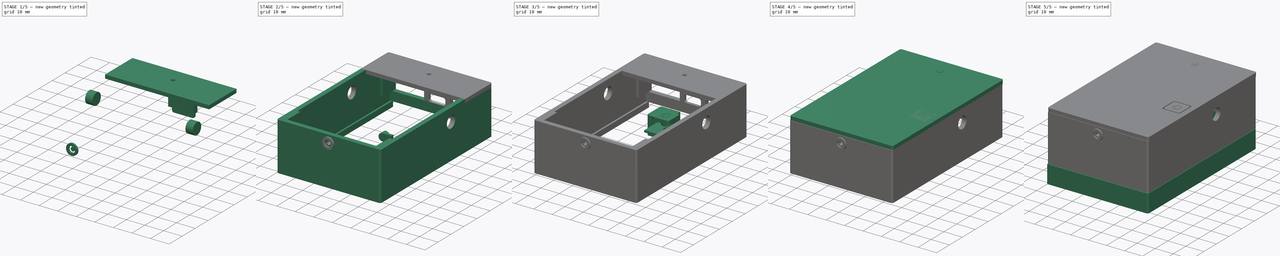
[diagram: build sequence overview — one tinted view per stage of 5, left to right]
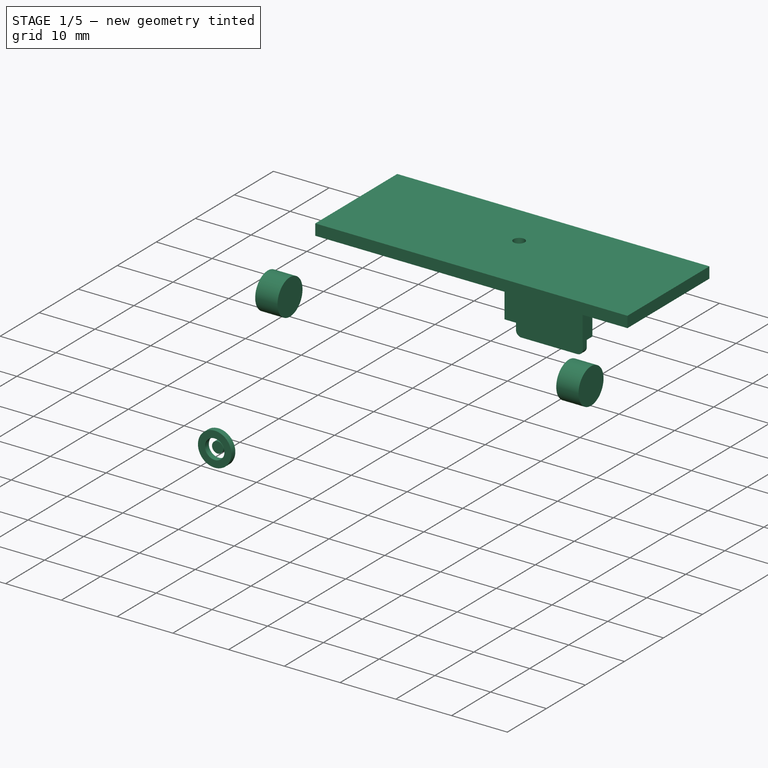
[diagram: stage 1 of 5 — iso view after this stage's code; geometry added in this stage tinted green]
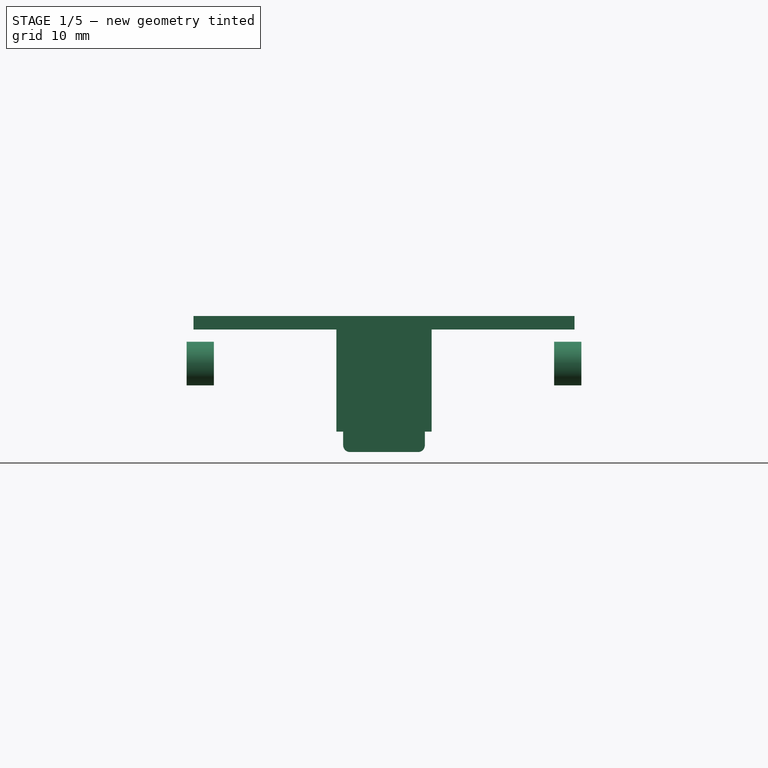
[diagram: stage 1 of 5 — front view after this stage's code; geometry added in this stage tinted green]
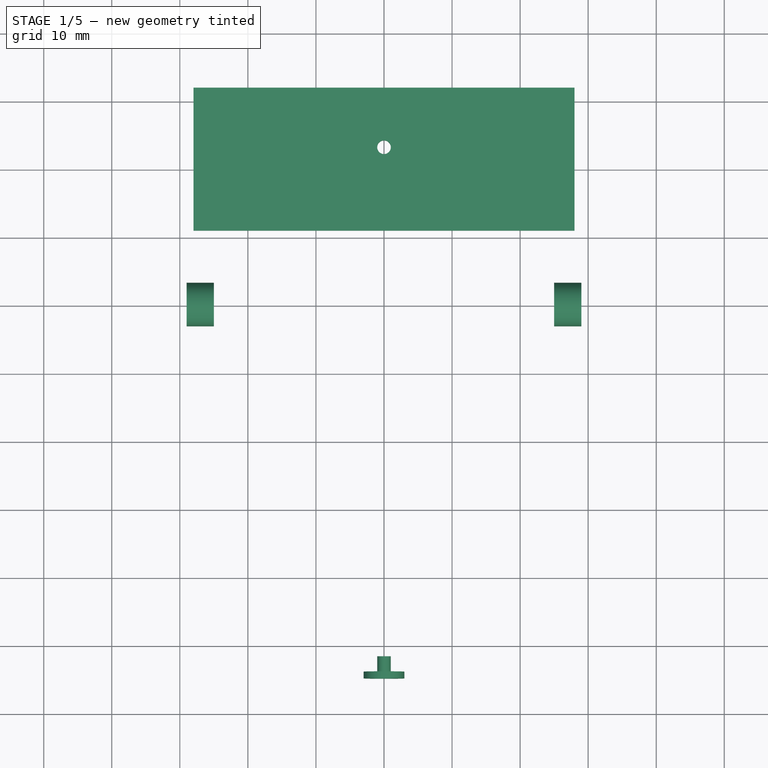
[diagram: stage 1 of 5 — top view after this stage's code; geometry added in this stage tinted green]
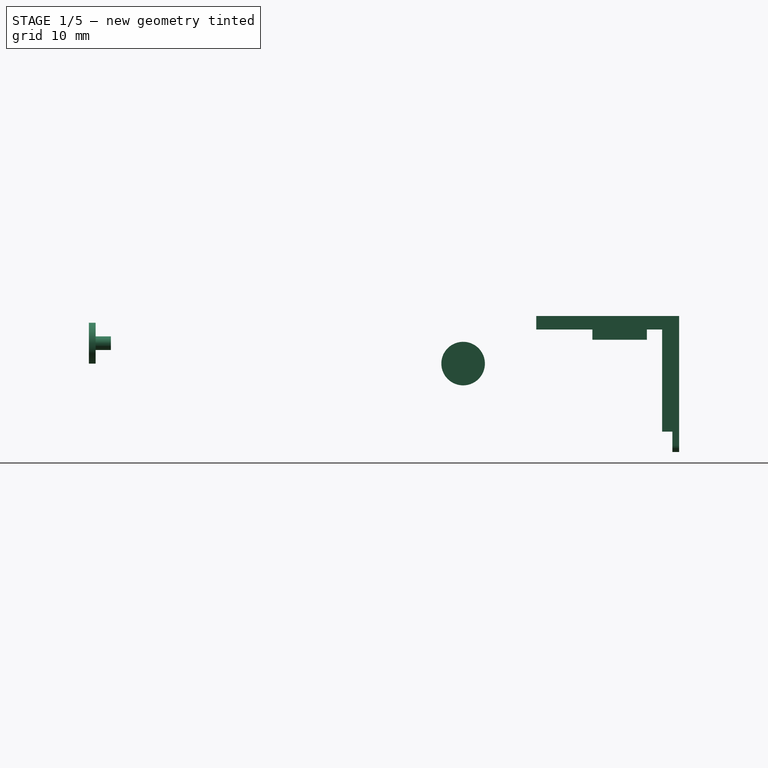
[diagram: stage 1 of 5 — right view after this stage's code; geometry added in this stage tinted green]
FCSTD DOCUMENT  (FreeCAD 0.19R)
Label: lte-router-table-outdoor-ant
License: All rights reserved
LicenseURL: http://en.wikipedia.org/wiki/All_rights_reserved
objects: Part::Box×27, Part::Cylinder×17, Part::MultiFuse×16, Part::Cut×16, Part::Fillet×9, Part::Extrusion×3, Part::RegularPolygon×2, Sketcher::SketchObject×1, PartDesign::Pad×1, PartDesign::Body×1, Part::Chamfer×1, Part::Cone×1, Part::Part2DObjectPython×1
note: 97 computed .brp shape members not serialized (recipe doc carries the construction recipe); baked Part::Feature solids carry a one-line shape summary decoded from their .brp

FEATURE [Part::Box] Box006  label="Куб006"
  AttacherType = Attacher::AttachEngine3D
  Height = 2
  Length = 56
  Placement = pos=(-28,20.75,15) rot=(0,0,1;0rad)
  Width = 21
FEATURE [Part::Cylinder] Cylinder  label="Цилиндр"
  Angle = 360
  AttacherType = Attacher::AttachEngine3D
  Height = 2
  Placement = pos=(0,33,15) rot=(0,0,1;0rad)
  Radius = 1
FEATURE [Part::Cut] Cut001
  Base = -> Box006
  Tool = -> Cylinder
FEATURE [Part::Box] Box007  label="Куб007"
  AttacherType = Attacher::AttachEngine3D
  Height = 17
  Length = 14
  Placement = pos=(-7,39.25,0) rot=(0,0,1;0rad)
  Width = 2.5
FEATURE [Part::Box] Box008  label="Куб008"
  AttacherType = Attacher::AttachEngine3D
  Height = 10
  Length = 12
  Placement = pos=(-6,40.75,-3) rot=(0,0,1;0rad)
  Width = 1
FEATURE [Part::Fillet] Fillet001
  Base = -> Box008
  Edges = 4 edges r=1: [Edge2,Edge4,Edge6,Edge8]
FEATURE [Part::Box] Box009  label="Куб009"
  AttacherType = Attacher::AttachEngine3D
  Height = 4
  Length = 9
  Placement = pos=(-4.5,39.25,0) rot=(0,0,1;0rad)
  Width = 2.5
FEATURE [Part::Fillet] Fillet002
  Base = -> Box009
  Edges = 4 edges r=1.2: [Edge2,Edge4,Edge6,Edge8]
FEATURE [Part::Cylinder] Cylinder004  label="Цилиндр004"
  Angle = 360
  AttacherType = Attacher::AttachEngine3D
  Height = 2.5
  Placement = pos=(0,-41.75,13) rot=(1,0,0;1.5708rad)
  Radius = 1
FEATURE [Part::Cylinder] Cylinder005  label="Цилиндр005"
  Angle = 360
  AttacherType = Attacher::AttachEngine3D
  Height = 1
  Placement = pos=(0,-44,13) rot=(1,0,0;1.5708rad)
  Radius = 1.75
  expr: Radius = 3.5 / 2
FEATURE [Part::Cylinder] Cylinder006  label="Цилиндр006"
  Angle = 360
  AttacherType = Attacher::AttachEngine3D
  Height = 1
  Placement = pos=(0,-44,13) rot=(1,0,0;1.5708rad)
  Radius = 3
FEATURE [Part::Cut] Cut005
  Base = -> Cylinder006
  Tool = -> Cylinder005
FEATURE [Part::RegularPolygon] RegularPolygon  label="Правильный многоугольник"
  AttacherType = Attacher::AttachEngine3D
  Circumradius = 2.3
  Polygon = 6
FEATURE [Part::Extrusion] Extrude
  Base = -> RegularPolygon
  Dir = (0,0,1)
  DirMode = 2
  FaceMakerClass = Part::FaceMakerBullseye
  LengthFwd = 1.5
  LengthRev = 0
  Solid = true
  Symmetric = false
FEATURE [Part::Box] Box016  label="Куб016"
  AttacherType = Attacher::AttachEngine3D
  Height = 1.5
  Length = 8
  Placement = pos=(-4,-4,0) rot=(0,0,1;0rad)
  Width = 8
FEATURE [Part::Cut] Cut006
  Base = -> Box016
  Placement = pos=(0,33,13.5) rot=(0,0,1;0rad)
  Tool = -> Extrude
FEATURE [Part::Cylinder] Cylinder015  label="Цилиндр015"
  Angle = 360
  AttacherType = Attacher::AttachEngine3D
  Height = 4
  Placement = pos=(25,10,10) rot=(0,1,0;1.5708rad)
  Radius = 3.2
FEATURE [Part::Cylinder] Cylinder016  label="Цилиндр016"
  Angle = 360
  AttacherType = Attacher::AttachEngine3D
  Height = 4
  Placement = pos=(-29,10,10) rot=(0,1,0;1.5708rad)
  Radius = 3.2
FEATURE [Part::MultiFuse] Fusion003
  Shapes = -> [Fillet001,Fillet002,Cylinder004,Cylinder015,Cylinder016]
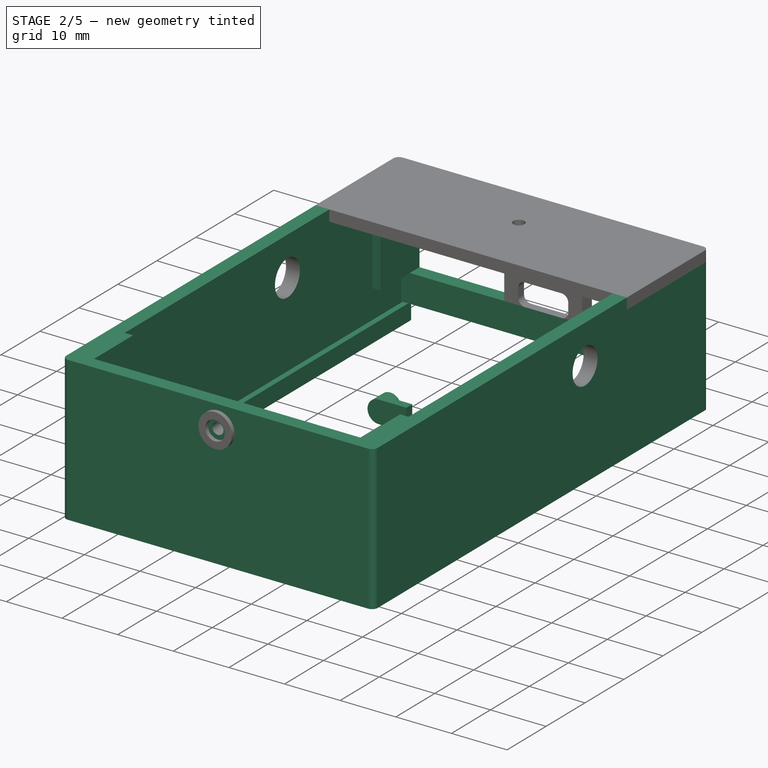
[diagram: stage 2 of 5 — iso view after this stage's code; geometry added in this stage tinted green]
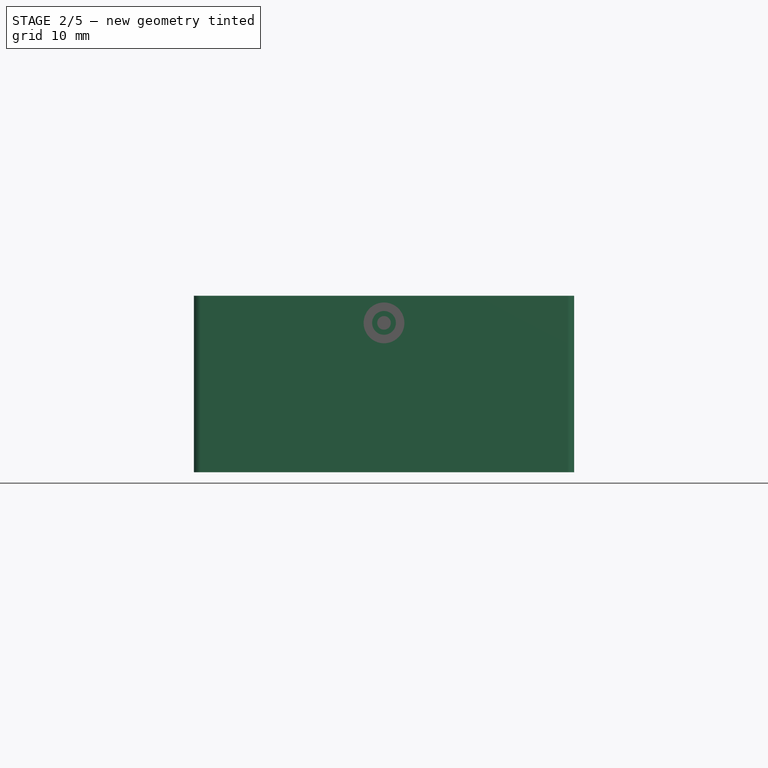
[diagram: stage 2 of 5 — front view after this stage's code; geometry added in this stage tinted green]
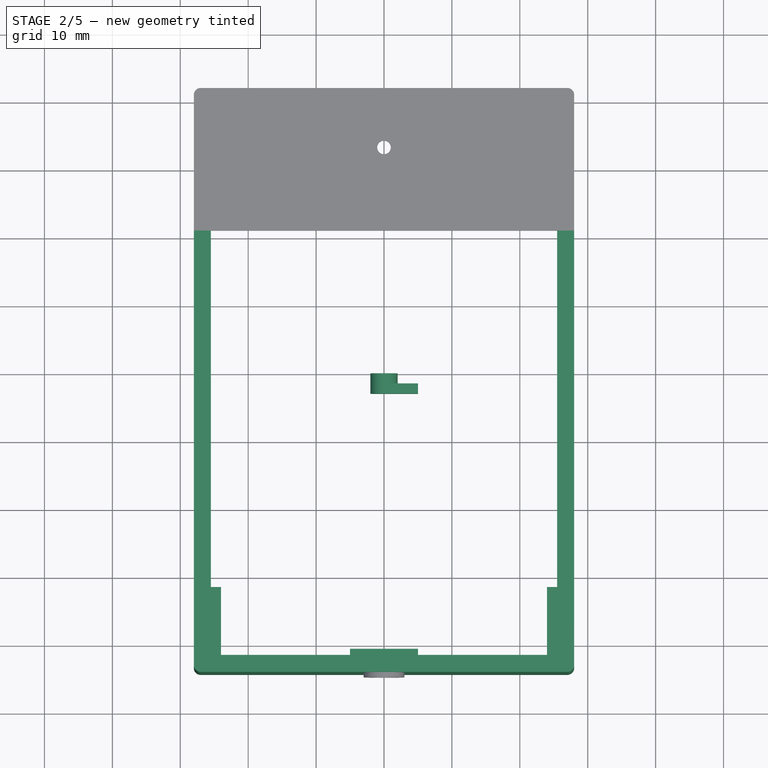
[diagram: stage 2 of 5 — top view after this stage's code; geometry added in this stage tinted green]
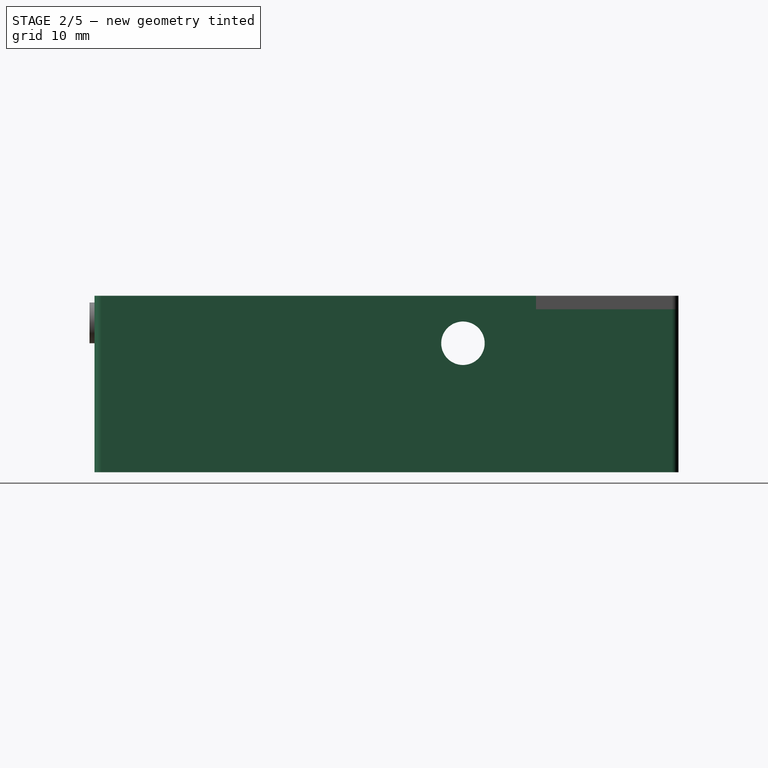
[diagram: stage 2 of 5 — right view after this stage's code; geometry added in this stage tinted green]
FEATURE [Sketcher::SketchObject] Sketch002
  FullyConstrained = true
  MapMode = 5
  Support = -> [XY_Plane002]
  expr: Constraints[60] = Constraints[38]
  expr: Constraints[38] = Constraints[37]
  expr: Constraints[36] = Constraints[29]
  expr: Constraints[25] = Constraints[24]
  expr: Constraints[7] = Constraints[49] / 2
  expr: Constraints[6] = Constraints[5] / 2
  sketch-geometry (28):
    g0: LineSegment StartX=25.5 StartY=41.75 StartZ=0 EndX=25.5 EndY=-41.75 EndZ=0
    g1: LineSegment StartX=25.5 StartY=-41.75 StartZ=0 EndX=-25.5 EndY=-41.75 EndZ=0
    g2: LineSegment StartX=-25.5 StartY=-41.75 StartZ=0 EndX=-25.5 EndY=41.75 EndZ=0
    g3: LineSegment StartX=-25.5 StartY=41.75 StartZ=0 EndX=-24 EndY=41.75 EndZ=0
    g4: LineSegment StartX=-24 StartY=41.75 StartZ=0 EndX=-24 EndY=31.75 EndZ=0
    g5: LineSegment StartX=-24 StartY=31.75 StartZ=0 EndX=-7.7 EndY=31.75 EndZ=0
    g6: LineSegment StartX=-7.7 StartY=31.75 StartZ=0 EndX=-7.7 EndY=41.75 EndZ=0
    g7: LineSegment StartX=-7.7 StartY=41.75 StartZ=0 EndX=7.7 EndY=41.75 EndZ=0
    g8: LineSegment StartX=7.7 StartY=41.75 StartZ=0 EndX=7.7 EndY=31.75 EndZ=0
    g9: LineSegment StartX=7.7 StartY=31.75 StartZ=0 EndX=24 EndY=31.75 EndZ=0
    g10: LineSegment StartX=24 StartY=31.75 StartZ=0 EndX=24 EndY=41.75 EndZ=0
    g11: LineSegment StartX=24 StartY=41.75 StartZ=0 EndX=25.5 EndY=41.75 EndZ=0
    g12: LineSegment StartX=-24 StartY=41.75 StartZ=0 EndX=-7.7 EndY=41.75 EndZ=0
    g13: LineSegment StartX=7.7 StartY=41.75 StartZ=0 EndX=24 EndY=41.75 EndZ=0
    g14: LineSegment StartX=-7.7 StartY=31.75 StartZ=0 EndX=7.7 EndY=31.75 EndZ=0
    g15: LineSegment StartX=-24 StartY=31.75 StartZ=0 EndX=-25.5 EndY=31.75 EndZ=0
    g16: LineSegment StartX=24 StartY=31.75 StartZ=0 EndX=25.5 EndY=31.75 EndZ=0
    g17: LineSegment StartX=25.5 StartY=31.75 StartZ=0 EndX=25.5 EndY=-41.75 EndZ=0
    g18: LineSegment StartX=-25.5 StartY=31.75 StartZ=0 EndX=-25.5 EndY=-31.75 EndZ=0
    g19: LineSegment StartX=-25.5 StartY=-31.75 StartZ=0 EndX=-24 EndY=-31.75 EndZ=0
    g20: LineSegment StartX=-24 StartY=-31.75 StartZ=0 EndX=-24 EndY=-41.75 EndZ=0
    g21: LineSegment StartX=-24 StartY=-31.75 StartZ=0 EndX=-24 EndY=31.75 EndZ=0
    g22: LineSegment StartX=-24 StartY=-31.75 StartZ=0 EndX=25.5 EndY=-31.75 EndZ=0
    g23: LineSegment StartX=25.5 StartY=31.75 StartZ=0 EndX=25.5 EndY=-31.75 EndZ=0
    g24: LineSegment StartX=25.5 StartY=-31.75 StartZ=0 EndX=24 EndY=-31.75 EndZ=0
    g25: LineSegment StartX=24 StartY=-31.75 StartZ=0 EndX=24 EndY=-41.75 EndZ=0
    g26: LineSegment StartX=24 StartY=-41.75 StartZ=0 EndX=-24 EndY=-41.75 EndZ=0
    g27: LineSegment StartX=24 StartY=31.75 StartZ=0 EndX=24 EndY=-31.75 EndZ=0
  constraints (76):
    c: Coincident(g0,g1)
    c: Coincident(g1,g2)
    c: Horizontal(g1)
    c: Vertical(g0)
    c: Vertical(g2)
    c: DistanceX(g1,g1) = 51
    c: DistanceX(g-1,g0) = 25.5
    c: DistanceY(g0,g-1) = 41.75
    c: Coincident(g3,g2)
    c: Horizontal(g3)
    c: Vertical(g4)
    c: Coincident(g5,g4)
    c: Horizontal(g5)
    c: Vertical(g6)
    c: Horizontal(g7)
    c: Coincident(g8,g7)
    c: Vertical(g8)
    c: Coincident(g9,g8)
    c: Horizontal(g9)
    c: Coincident(g10,g9)
    c: Vertical(g10)
    c: Coincident(g11,g10)
    c: Coincident(g11,g0)
    c: Horizontal(g11)
    c: DistanceX(g3,g3) = 1.5
    c: DistanceX(g11,g11) = 1.5
    c: Coincident(g4,g3)
    c: Coincident(g6,g7)
    c: Coincident(g6,g5)
    c: DistanceX(g5,g5) = 16.3
    c: Coincident(g12,g3)
    c: Coincident(g12,g6)
    c: Horizontal(g12)
    c: Coincident(g13,g7)
    c: Coincident(g13,g10)
    c: Horizontal(g13)
    c: DistanceX(g9,g9) = 16.3
    c: DistanceY(g6,g6) = 10
    c: DistanceY(g8,g8) = 10
    c: Coincident(g14,g6)
    c: Coincident(g14,g8)
    c: Coincident(g15,g4)
    c: PointOnObject(g15,g2)
    c: Horizontal(g15)
    c: Coincident(g16,g10)
    c: PointOnObject(g16,g0)
    c: Horizontal(g16)
    c: Coincident(g17,g16)
    c: Coincident(g17,g1)
    c: DistanceY(g1,g2) = 83.5
    c: Coincident(g18,g15)
    c: PointOnObject(g18,g2)
    c: Coincident(g19,g18)
    c: Coincident(g20,g19)
    c: PointOnObject(g20,g1)
    c: Vertical(g20)
    c: Coincident(g21,g19)
    c: Coincident(g21,g4)
    c: Vertical(g21)
    c: Horizontal(g19)
    c: DistanceY(g20,g20) = 10
    c: Coincident(g22,g19)
    c: PointOnObject(g22,g0)
    c: Horizontal(g22)
    c: Coincident(g23,g16)
    c: Coincident(g23,g22)
    c: Coincident(g24,g23)
    c: PointOnObject(g24,g22)
    c: Coincident(g25,g24)
    c: PointOnObject(g25,g1)
    c: Vertical(g25)
    c: Coincident(g26,g25)
    c: Coincident(g26,g20)
    c: Coincident(g27,g10)
    c: Coincident(g27,g24)
    c: Vertical(g27)
FEATURE [PartDesign::Pad] Pad001
  Direction = (1,1,1)
  Length = 17
  Length2 = 100
  Profile = -> Sketch002
  Type = 0
FEATURE [PartDesign::Body] Body002
  Group = -> [Sketch002,Pad001]
  Origin = -> Origin002
  Tip = -> Pad001
FEATURE [Part::Box] Box  label="Куб"
  AttacherType = Attacher::AttachEngine3D
  Height = 26
  Length = 56
  Placement = pos=(-28,-44.25,-9) rot=(0,0,1;0rad)
  Width = 86
FEATURE [Part::Box] Box001  label="Куб001"
  AttacherType = Attacher::AttachEngine3D
  Height = 5
  Length = 51
  Placement = pos=(-25.5,-41.75,-5) rot=(0,0,1;0rad)
  Width = 81
FEATURE [Part::Box] Box002  label="Куб002"
  AttacherType = Attacher::AttachEngine3D
  Height = 1
  Length = 53
  Placement = pos=(-26.5,-42.5,-6) rot=(0,0,1;0rad)
  Width = 85
FEATURE [Part::Box] Box003  label="Куб003"
  AttacherType = Attacher::AttachEngine3D
  Height = 3
  Length = 51
  Placement = pos=(-25.5,-41.75,-9) rot=(0,0,1;0rad)
  Width = 84
FEATURE [Part::MultiFuse] Fusion
  Shapes = -> [Body002,Box001,Box002,Box003]
FEATURE [Part::Box] Box004  label="Куб004"
  AttacherType = Attacher::AttachEngine3D
  Height = 1.5
  Length = 10
  Width = 1.5
FEATURE [Part::Chamfer] Chamfer
  Base = -> Box004
  Edges = 1 edges r=1: [Edge11]
  Placement = pos=(-5,-42,-4) rot=(0,0,1;0rad)
FEATURE [Part::Box] Box005  label="Куб005"
  AttacherType = Attacher::AttachEngine3D
  Height = 10
  Length = 12
  Placement = pos=(-6,41,-3) rot=(0,0,1;0rad)
  Width = 1
FEATURE [Part::Fillet] Fillet
  Base = -> Box005
  Edges = 4 edges r=1: [Edge2,Edge4,Edge6,Edge8]
FEATURE [Part::MultiFuse] Fusion001
  Shapes = -> [Fusion,Fillet]
FEATURE [Part::Cut] Cut
  Base = -> Box
  Tool = -> Fusion001
FEATURE [Part::MultiFuse] Fusion002
  Shapes = -> [Chamfer,Cut,Cut001,Box007]
FEATURE [Part::Box] Box026  label="Куб026"
  AttacherType = Attacher::AttachEngine3D
  Height = 4
  Length = 5
  Placement = pos=(0,-3,-2) rot=(0,1,0;0rad)
  Width = 1.5
FEATURE [Part::Cylinder] Cylinder014  label="Цилиндр014"
  Angle = 360
  AttacherType = Attacher::AttachEngine3D
  Height = 3
  Placement = pos=(0,0,0) rot=(1,0,0;1.5708rad)
  Radius = 2
FEATURE [Part::Cut] Cut002
  Base = -> Fusion002
  Tool = -> Fusion003
FEATURE [Part::MultiFuse] Fusion008
  Shapes = -> [Cut002,Cut005,Cut006]
FEATURE [Part::Fillet] Fillet010
  Base = -> Fusion008
  Edges = 6 edges r=1: [Edge111,Edge121,Edge165,Edge180,Edge208,Edge218]
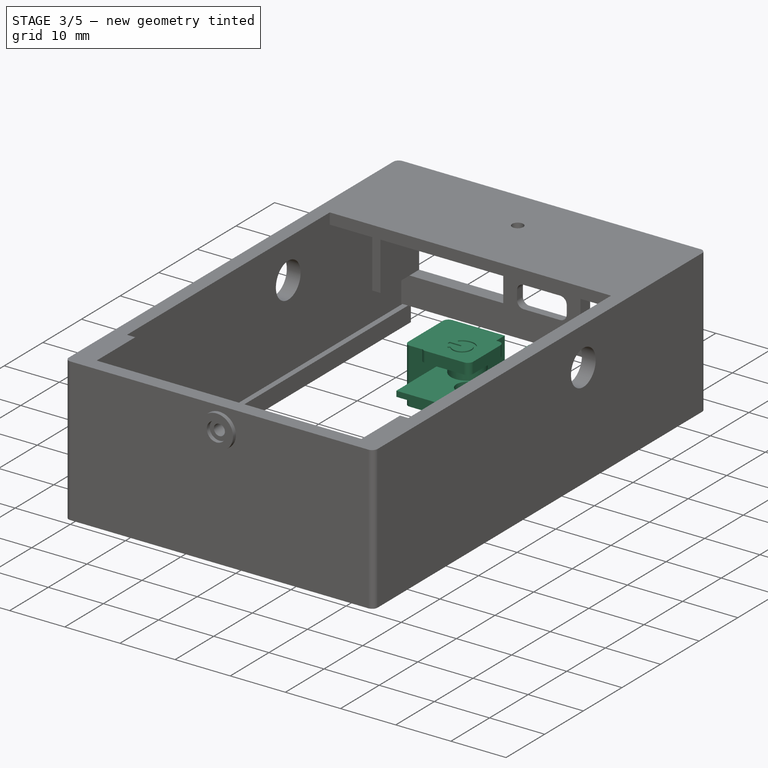
[diagram: stage 3 of 5 — iso view after this stage's code; geometry added in this stage tinted green]
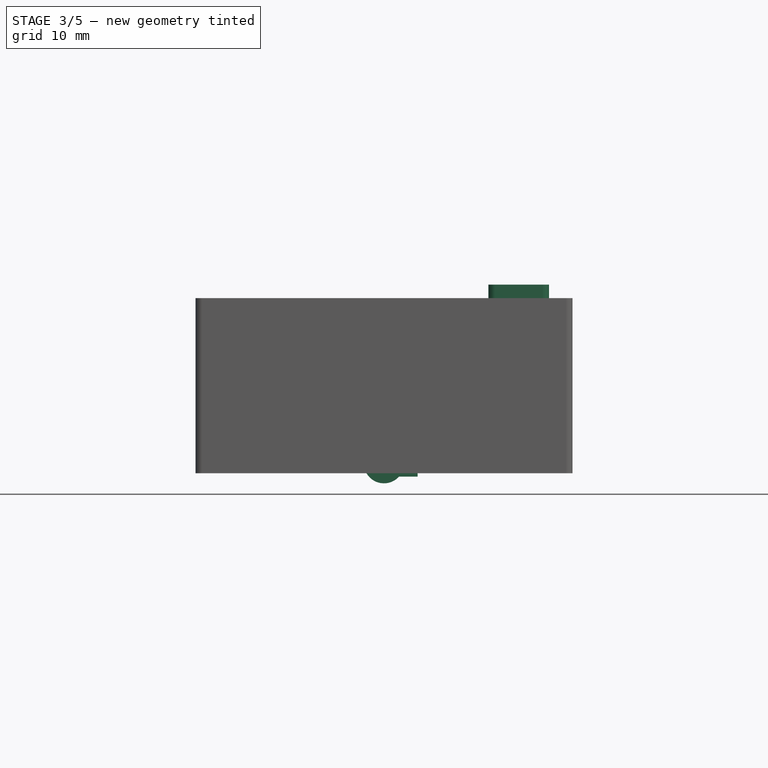
[diagram: stage 3 of 5 — front view after this stage's code; geometry added in this stage tinted green]
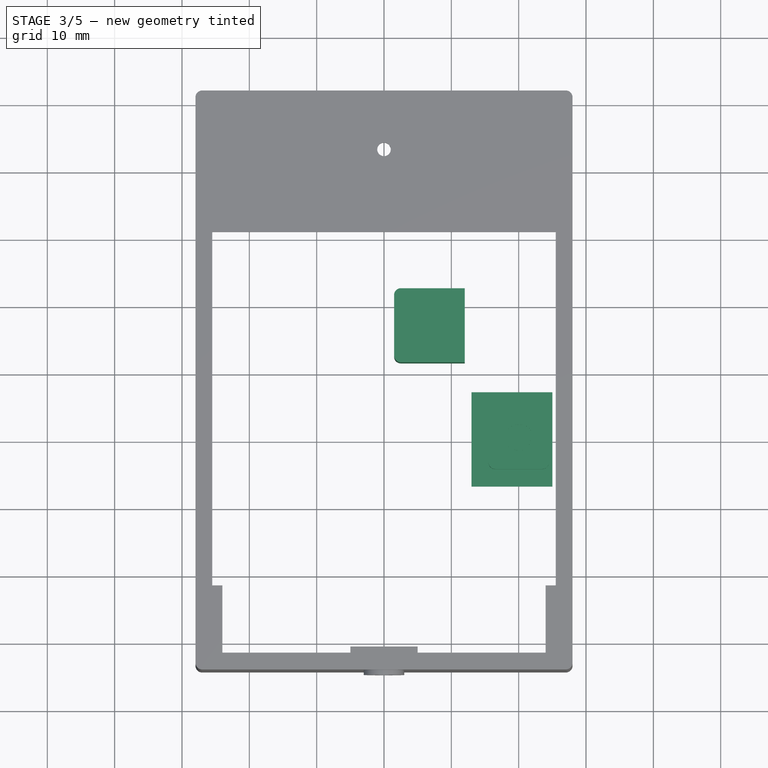
[diagram: stage 3 of 5 — top view after this stage's code; geometry added in this stage tinted green]
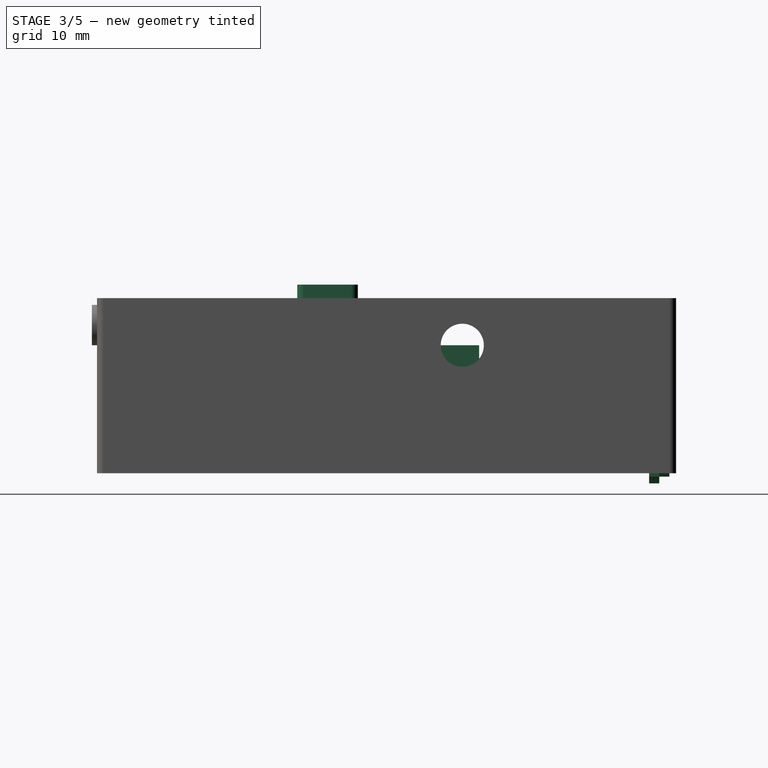
[diagram: stage 3 of 5 — right view after this stage's code; geometry added in this stage tinted green]
FEATURE [Part::Box] Box021  label="Куб021"
  AttacherType = Attacher::AttachEngine3D
  Height = 2
  Length = 9
  Placement = pos=(15.5,-14.5,17) rot=(0,0,1;0rad)
  Width = 9
FEATURE [Part::Fillet] Fillet008
  Base = -> Box021
  Edges = 4 edges r=1: [Edge1,Edge3,Edge5,Edge7]
FEATURE [Part::Cylinder] Cylinder009  label="Цилиндр009"
  Angle = 360
  AttacherType = Attacher::AttachEngine3D
  Height = 3
  Placement = pos=(21,-10,15) rot=(0,0,1;0rad)
  Radius = 3
FEATURE [Part::MultiFuse] Fusion012
  Shapes = -> [Fillet008,Cylinder009]
FEATURE [Part::Cylinder] Cylinder010  label="Цилиндр010"
  Angle = 360
  AttacherType = Attacher::AttachEngine3D
  Height = 3.5
  Placement = pos=(21,-10,15) rot=(0,0,1;0rad)
  Radius = 1.5
FEATURE [Part::Cut] Cut011  label="button"
  Base = -> Fusion012
  Tool = -> Cylinder010
FEATURE [Part::Box] Box022  label="Куб022"
  AttacherType = Attacher::AttachEngine3D
  Height = 10
  Length = 10.5
  Placement = pos=(1.5,1.5,0) rot=(0,0,1;0rad)
  Width = 11
FEATURE [Part::Fillet] Fillet009
  Base = -> Box022
  Edges = 2 edges r=1: [Edge1,Edge3]
FEATURE [Part::Box] Box024  label="Куб024"
  AttacherType = Attacher::AttachEngine3D
  Height = 1
  Length = 12
  Placement = pos=(13,-17,11.5) rot=(0,0,1;0rad)
  Width = 14
FEATURE [Part::Cylinder] Cylinder011  label="Цилиндр011"
  Angle = 360
  AttacherType = Attacher::AttachEngine3D
  Height = 1
  Placement = pos=(21,-10,11.5) rot=(0,0,1;0rad)
  Radius = 2
FEATURE [Part::Cut] Cut013
  Base = -> Box024
  Tool = -> Cylinder011
FEATURE [Part::Part2DObjectPython] ShapeString  # Draft 2D object (typed FeaturePython)
  FontFile = <userpath>/wrk/dlab/3d/lte-router/NotoSansSymbols2-Regular.ttf
  Size = 3
  String = ⏻
  Tracking = 0
FEATURE [Part::Extrusion] Extrude002
  Base = -> ShapeString
  Dir = (0,0,1)
  DirMode = 2
  FaceMakerClass = Part::FaceMakerBullseye
  LengthFwd = 0.2
  LengthRev = 0
  Placement = pos=(22,-12.5,18.8) rot=(0,0,1;1.5708rad)
  Solid = false
  Symmetric = false
FEATURE [Part::Cut] Cut014  label="btn"
  Base = -> Cut011
  Tool = -> Extrude002
FEATURE [Part::Cylinder] Cylinder012  label="Цилиндр012"
  Angle = 360
  AttacherType = Attacher::AttachEngine3D
  Height = 1.5
  Placement = pos=(0,-1.5,0) rot=(1,0,0;1.5708rad)
  Radius = 3
FEATURE [Part::Cylinder] Cylinder013  label="Цилиндр013"
  Angle = 360
  AttacherType = Attacher::AttachEngine3D
  Height = 4
  Placement = pos=(0,0,0) rot=(1,0,0;1.5708rad)
  Radius = 1
  expr: Radius = 1
FEATURE [Part::Box] Box025  label="Куб025"
  AttacherType = Attacher::AttachEngine3D
  Height = 1
  Length = 6
  Placement = pos=(-3,-3,2) rot=(0,0,1;0rad)
  Width = 3
FEATURE [Part::MultiFuse] Fusion014
  Shapes = -> [Cylinder013,Box025]
FEATURE [Part::MultiFuse] Fusion015
  Shapes = -> [Cylinder012,Box026,Cylinder014]
FEATURE [Part::Cut] Cut015
  Base = -> Fusion015
  Placement = pos=(0,40.75,-7.5) rot=(0,0,1;0rad)
  Tool = -> Fusion014
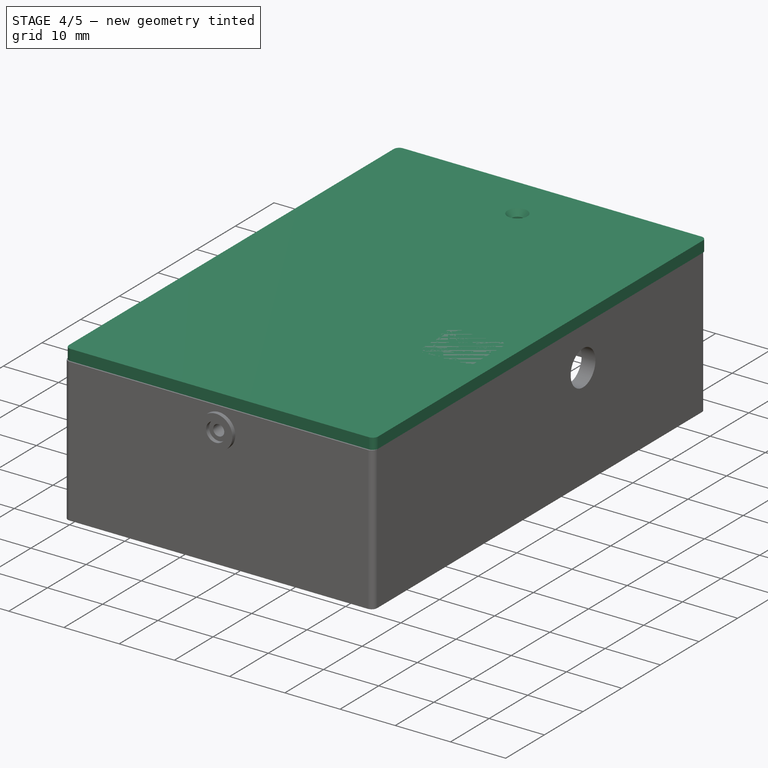
[diagram: stage 4 of 5 — iso view after this stage's code; geometry added in this stage tinted green]
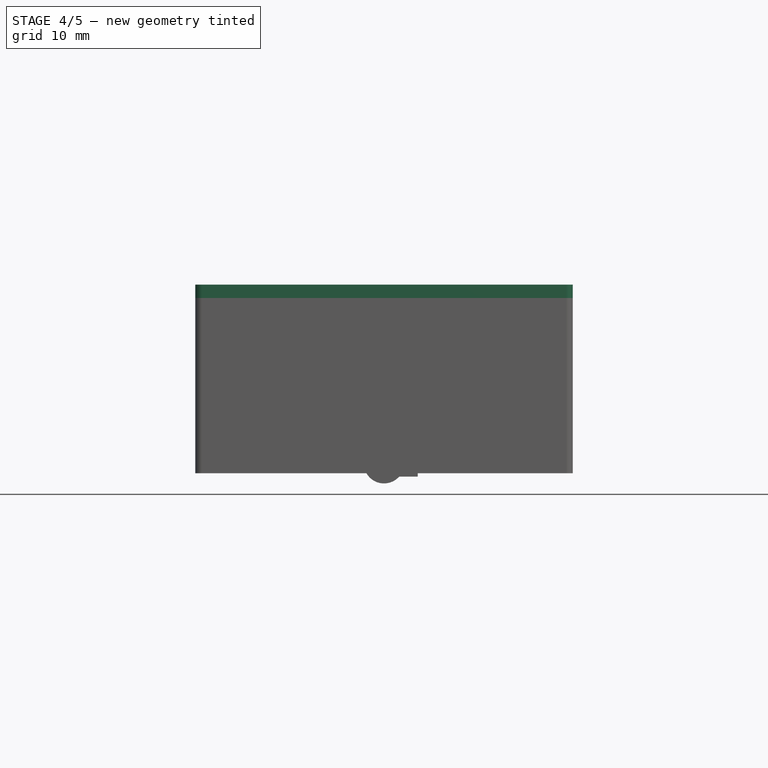
[diagram: stage 4 of 5 — front view after this stage's code; geometry added in this stage tinted green]
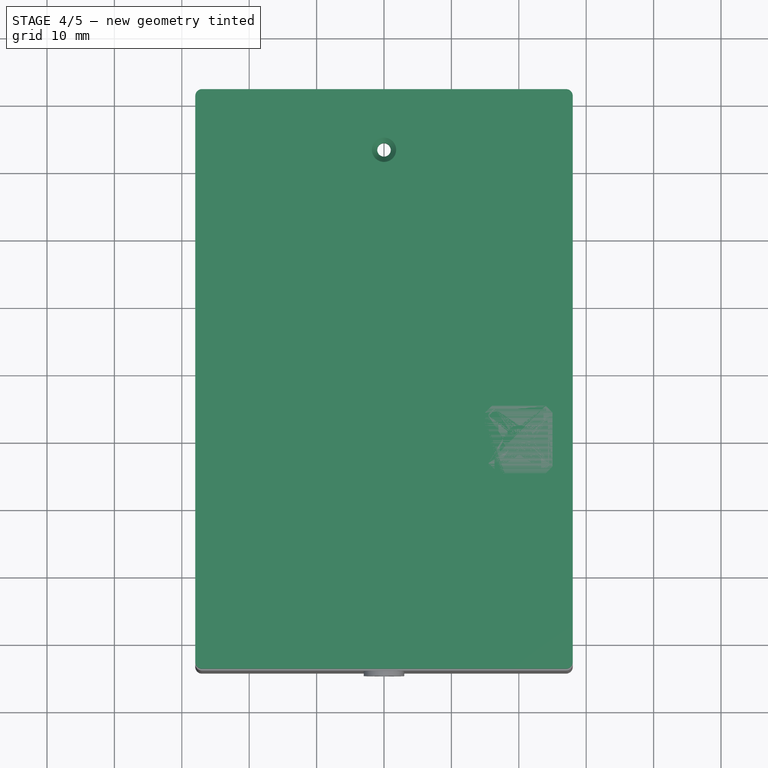
[diagram: stage 4 of 5 — top view after this stage's code; geometry added in this stage tinted green]
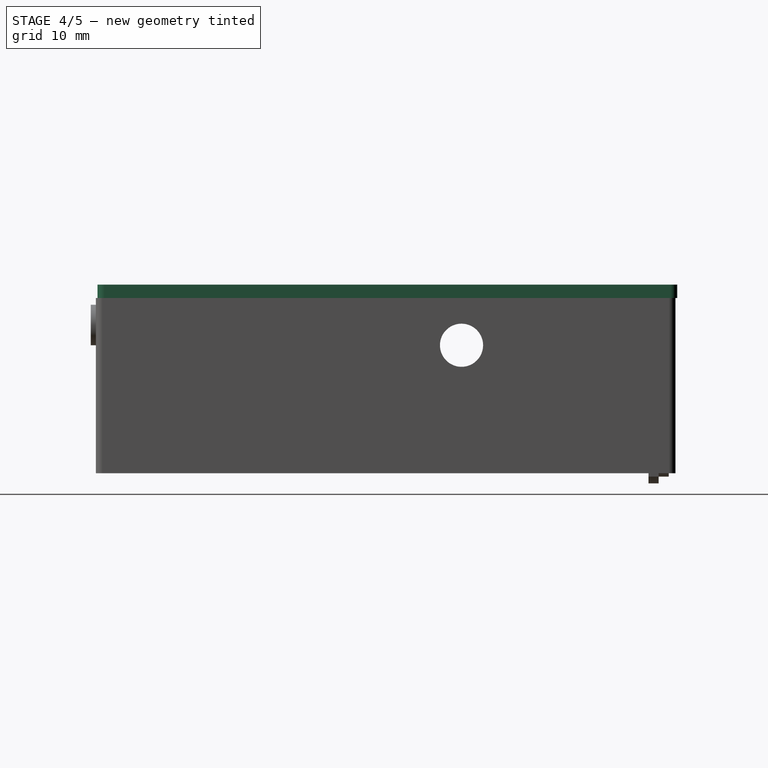
[diagram: stage 4 of 5 — right view after this stage's code; geometry added in this stage tinted green]
FEATURE [Part::Box] Box017  label="Куб017"
  AttacherType = Attacher::AttachEngine3D
  Height = 2
  Length = 56
  Placement = pos=(-28,-44,17) rot=(0,0,1;0rad)
  Width = 86
FEATURE [Part::Fillet] Fillet006
  Base = -> Box017
  Edges = 4 edges r=1: [Edge1,Edge3,Edge5,Edge7]
FEATURE [Part::Cylinder] Cylinder007  label="Цилиндр007"
  Angle = 360
  AttacherType = Attacher::AttachEngine3D
  Height = 2
  Placement = pos=(0,33,17) rot=(0,0,1;0rad)
  Radius = 1
FEATURE [Part::Cone] Cone  label="Конус"
  Angle = 360
  AttacherType = Attacher::AttachEngine3D
  Height = 1
  Placement = pos=(0,33,18) rot=(0,0,1;0rad)
  Radius1 = 1
  Radius2 = 1.8
FEATURE [Part::MultiFuse] Fusion009
  Shapes = -> [Cone,Cylinder007]
FEATURE [Part::Cut] Cut007
  Base = -> Fillet006
  Tool = -> Fusion009
FEATURE [Part::Box] Box018  label="Куб018"
  AttacherType = Attacher::AttachEngine3D
  Height = 10
  Length = 47
  Placement = pos=(-23.5,-41,7) rot=(0,0,1;0rad)
  Width = 2
FEATURE [Part::Box] Box019  label="Куб019"
  AttacherType = Attacher::AttachEngine3D
  Height = 8
  Length = 8
  Placement = pos=(-4,-1.5,-3.5) rot=(0,0,1;0rad)
  Width = 1.5
FEATURE [Part::RegularPolygon] RegularPolygon001  label="Правильный многоугольник001"
  AttacherType = Attacher::AttachEngine3D
  Circumradius = 2.3
  Polygon = 6
FEATURE [Part::Extrusion] Extrude001
  Base = -> RegularPolygon001
  Dir = (0,0,1)
  DirMode = 2
  FaceMakerClass = Part::FaceMakerBullseye
  LengthFwd = 1.5
  LengthRev = 0
  Placement = pos=(0,0,0) rot=(1,0,0;1.5708rad)
  Solid = true
  Symmetric = false
FEATURE [Part::Cut] Cut008
  Base = -> Box019
  Placement = pos=(0,-38,13) rot=(0,0,1;0rad)
  Tool = -> Extrude001
FEATURE [Part::Cylinder] Cylinder008  label="Цилиндр008"
  Angle = 360
  AttacherType = Attacher::AttachEngine3D
  Height = 2
  Placement = pos=(0,-39,13) rot=(1,0,0;1.5708rad)
  Radius = 1.2
FEATURE [Part::MultiFuse] Fusion010
  Shapes = -> [Box018,Cut008]
FEATURE [Part::Cut] Cut009
  Base = -> Fusion010
  Tool = -> Cylinder008
FEATURE [Part::MultiFuse] Fusion011
  Shapes = -> [Cut007,Cut009]
FEATURE [Part::Box] Box020  label="Куб020"
  AttacherType = Attacher::AttachEngine3D
  Height = 2
  Length = 10
  Placement = pos=(15,-15,17) rot=(0,0,1;0rad)
  Width = 10
FEATURE [Part::Fillet] Fillet007
  Base = -> Box020
  Edges = 4 edges r=1: [Edge1,Edge3,Edge5,Edge7]
FEATURE [Part::Box] Box023  label="Куб023"
  AttacherType = Attacher::AttachEngine3D
  Height = 5
  Length = 12
  Width = 14
FEATURE [Part::Cut] Cut012
  Base = -> Box023
  Placement = pos=(13,-17,12) rot=(0,0,1;0rad)
  Tool = -> Fillet009
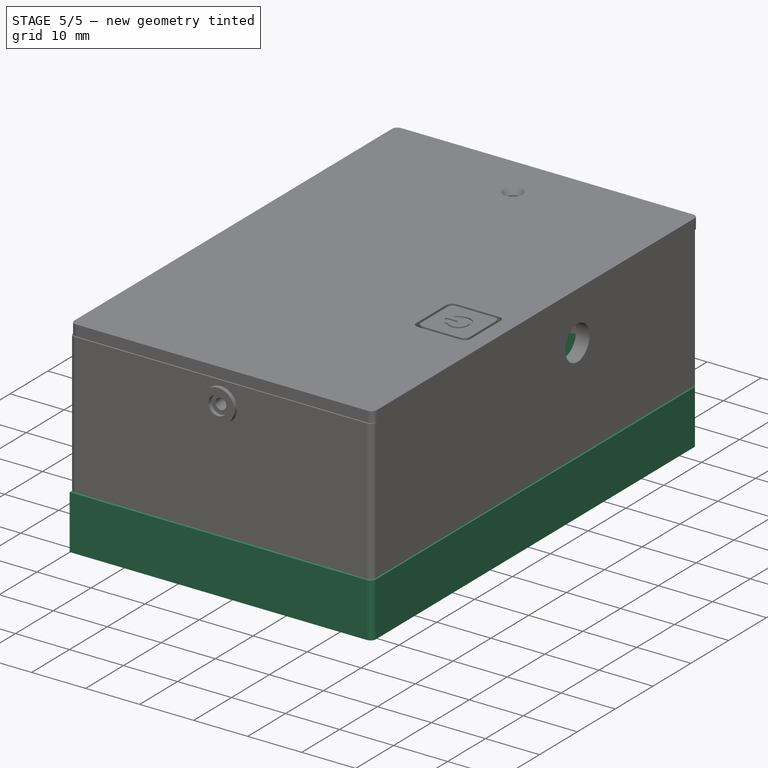
[diagram: stage 5 of 5 — iso view after this stage's code; geometry added in this stage tinted green]
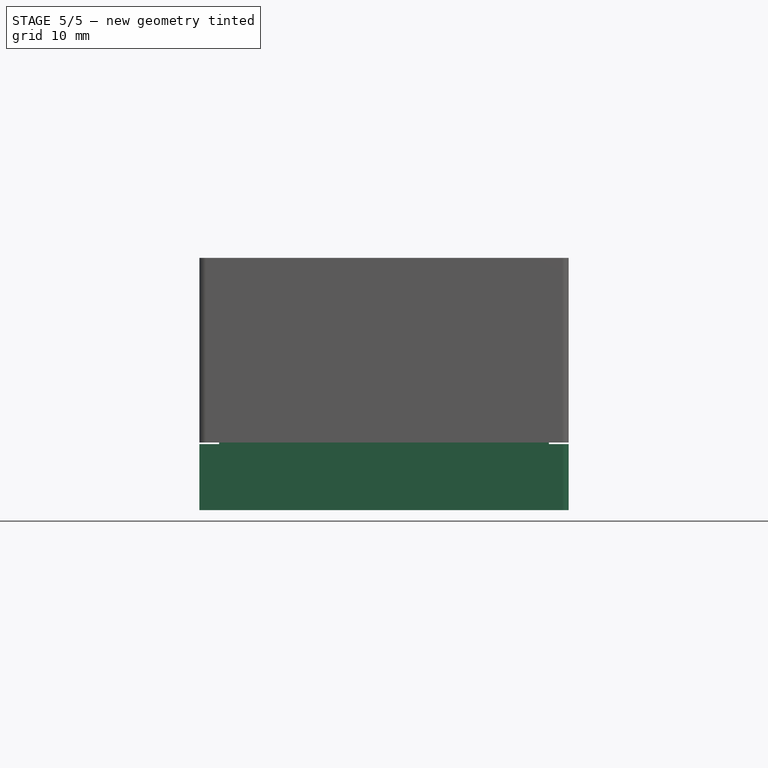
[diagram: stage 5 of 5 — front view after this stage's code; geometry added in this stage tinted green]
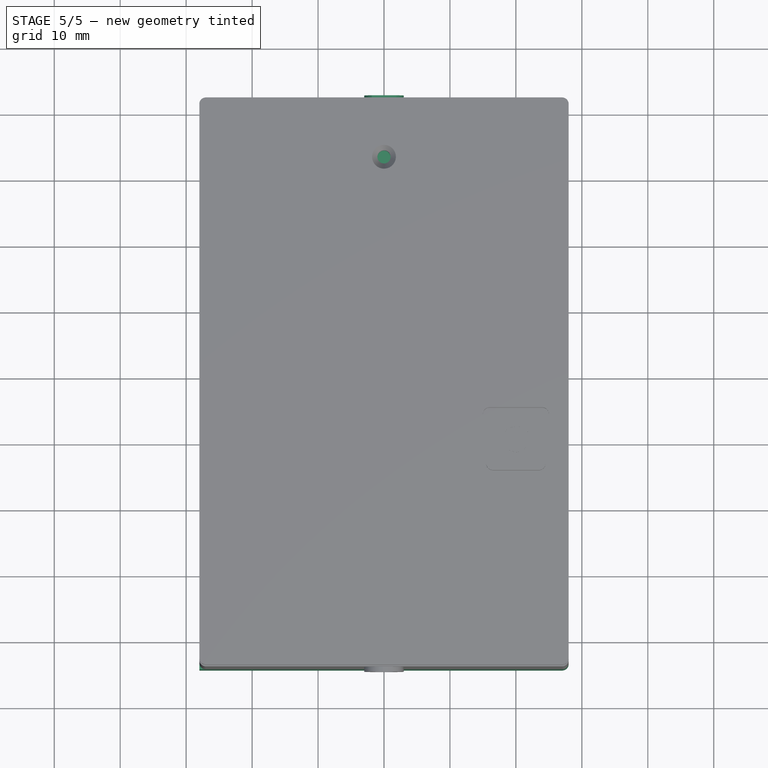
[diagram: stage 5 of 5 — top view after this stage's code; geometry added in this stage tinted green]
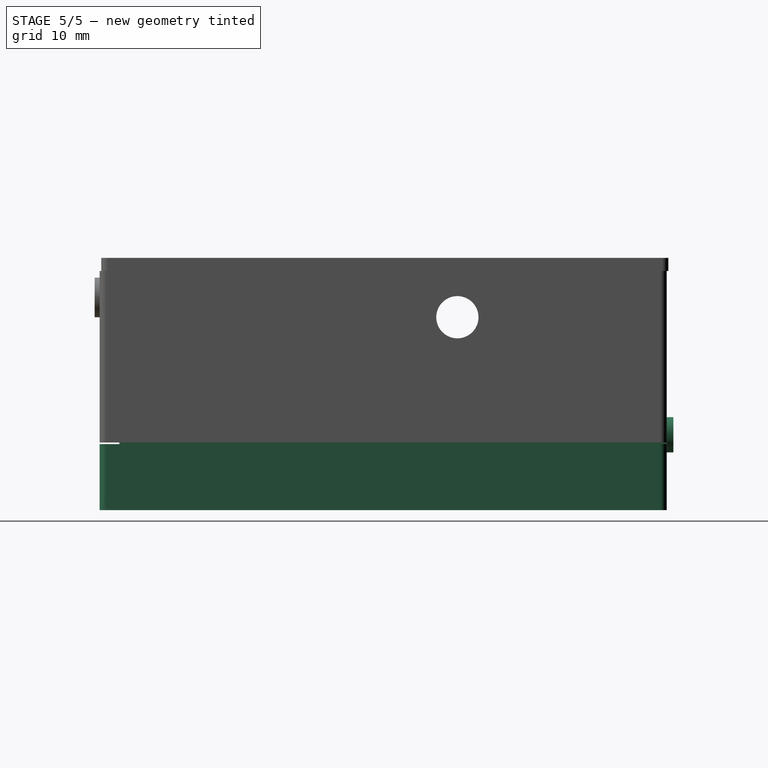
[diagram: stage 5 of 5 — right view after this stage's code; geometry added in this stage tinted green]
FEATURE [Part::Box] Box010  label="Куб010"
  AttacherType = Attacher::AttachEngine3D
  Height = 0.6
  Length = 52
  Placement = pos=(-26,-42,-5.75) rot=(0,0,1;0rad)
  Width = 83.75
FEATURE [Part::Box] Box011  label="Куб011"
  AttacherType = Attacher::AttachEngine3D
  Height = 4.25
  Length = 50
  Placement = pos=(-25,-41.25,-9.75) rot=(0,0,1;0rad)
  Width = 83
FEATURE [Part::Box] Box012  label="Куб012"
  AttacherType = Attacher::AttachEngine3D
  Height = 10
  Length = 56
  Placement = pos=(-28,-44.25,-19.25) rot=(0,0,1;0rad)
  Width = 86
FEATURE [Part::Box] Box013  label="Куб013"
  AttacherType = Attacher::AttachEngine3D
  Height = 12.5
  Length = 48
  Placement = pos=(-24,-40.25,-17.65) rot=(0,0,1;0rad)
  Width = 81
FEATURE [Part::MultiFuse] Fusion004
  Shapes = -> [Box010,Box011,Box012]
FEATURE [Part::Box] Box014  label="Куб014"
  AttacherType = Attacher::AttachEngine3D
  Height = 7
  Length = 51
  Placement = pos=(-25.5,-42.75,-18) rot=(0,0,1;0rad)
  Width = 83.5
FEATURE [Part::Cylinder] Cylinder001  label="Цилиндр001"
  Angle = 360
  AttacherType = Attacher::AttachEngine3D
  Height = 2
  Placement = pos=(0,42,-7.5) rot=(1,0,0;1.5708rad)
  Radius = 1
FEATURE [Part::MultiFuse] Fusion005
  Shapes = -> [Box013,Box014,Cylinder001]
FEATURE [Part::Cut] Cut003
  Base = -> Fusion004
  Tool = -> Fusion005
FEATURE [Part::Fillet] Fillet004  label="batt"
  Base = -> Cut003
  Edges = 4 edges r=1: [Edge65,Edge66,Edge68,Edge71]
FEATURE [Part::Cylinder] Cylinder002  label="Цилиндр002"
  Angle = 360
  AttacherType = Attacher::AttachEngine3D
  Height = 1
  Placement = pos=(0,42.75,-7.5) rot=(1,0,0;1.5708rad)
  Radius = 3
FEATURE [Part::Cylinder] Cylinder003  label="Цилиндр003"
  Angle = 360
  AttacherType = Attacher::AttachEngine3D
  Height = 1
  Placement = pos=(0,42.75,-7.5) rot=(1,0,0;1.5708rad)
  Radius = 1.75
  expr: Radius = 3.5 / 2
FEATURE [Part::Box] Box015  label="Куб015"
  AttacherType = Attacher::AttachEngine3D
  Height = 1
  Length = 6
  Placement = pos=(-3,39.75,-5.15) rot=(0,0,1;0rad)
  Width = 3
FEATURE [Part::MultiFuse] Fusion006
  Shapes = -> [Cylinder003,Box015]
FEATURE [Part::Cut] Cut004
  Base = -> Cylinder002
  Tool = -> Fusion006
FEATURE [Part::MultiFuse] Fusion007  label="bottom"
  Shapes = -> [Fillet004,Cut004]
FEATURE [Part::Cut] Cut010
  Base = -> Fusion011
  Tool = -> Fillet007
FEATURE [Part::MultiFuse] Fusion013  label="top"
  Shapes = -> [Cut010,Cut012,Cut013]
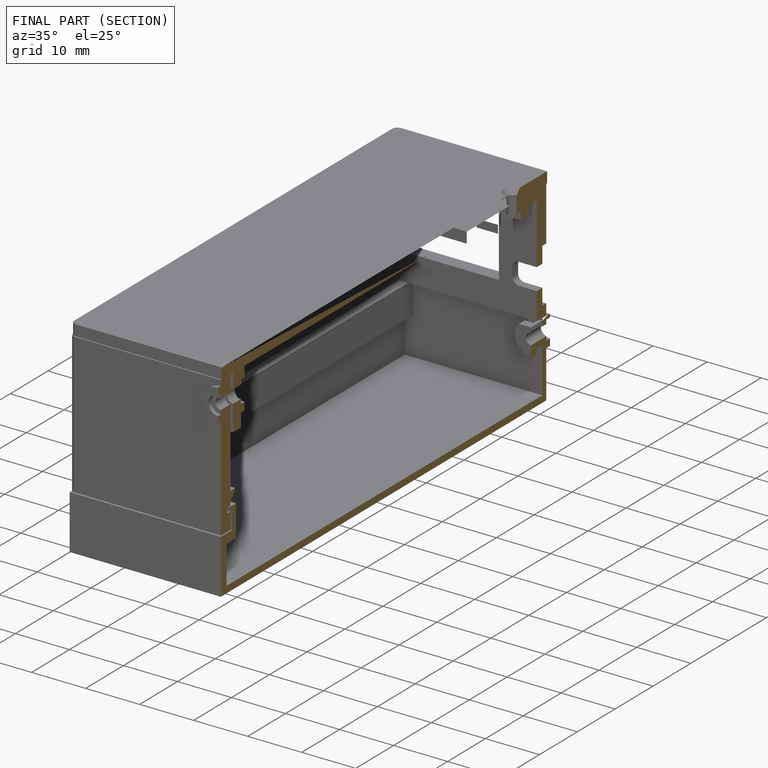
[diagram: finished part — half-section view (interior)]
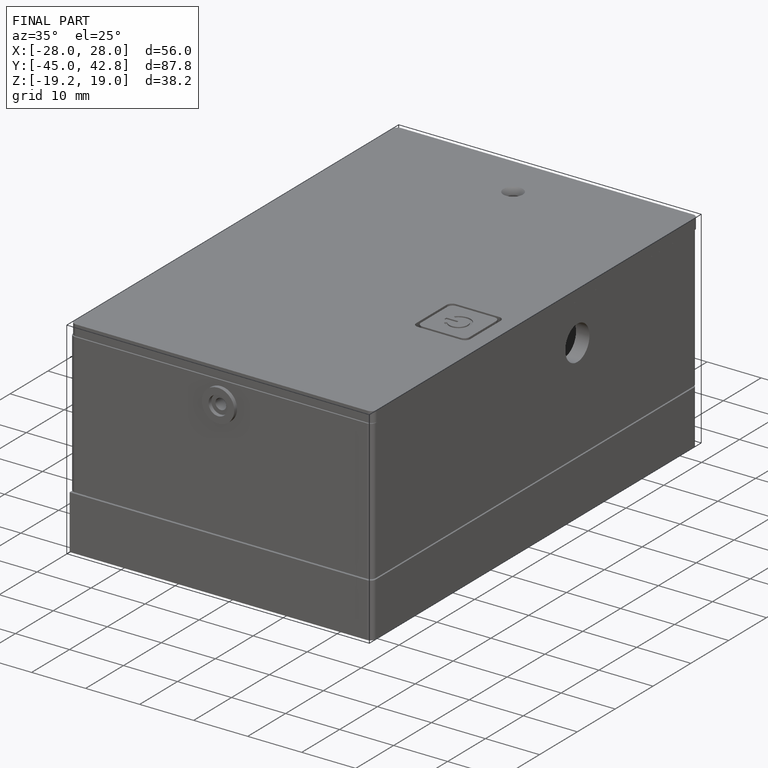
[diagram: finished part — iso view with bounding-box wireframe]
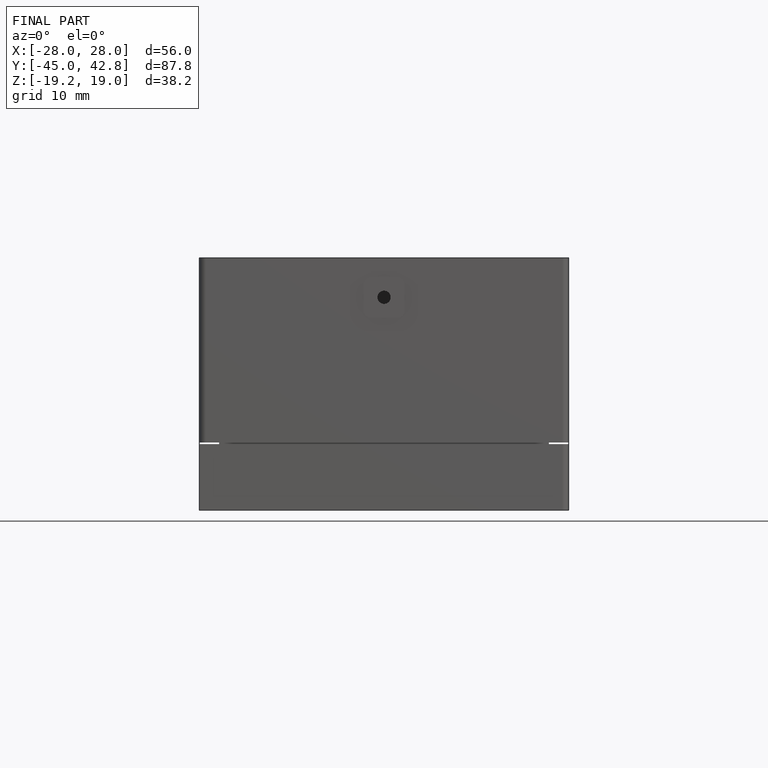
[diagram: finished part — front view with bounding-box wireframe]
